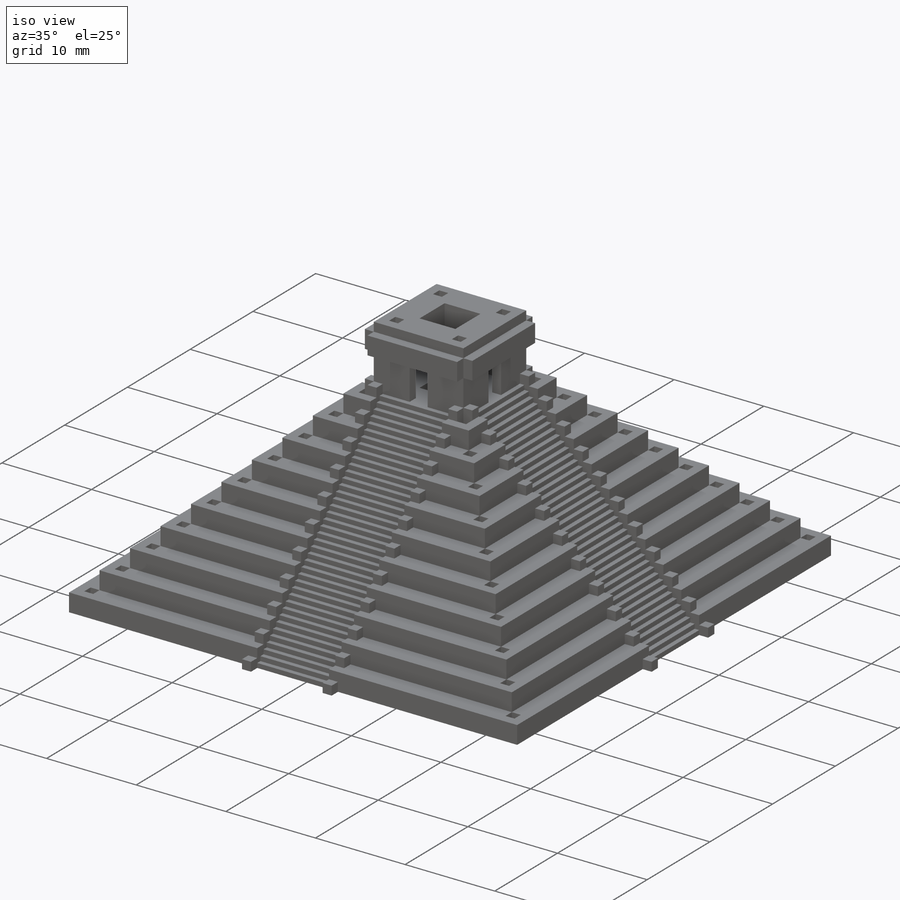
[diagram: iso view]
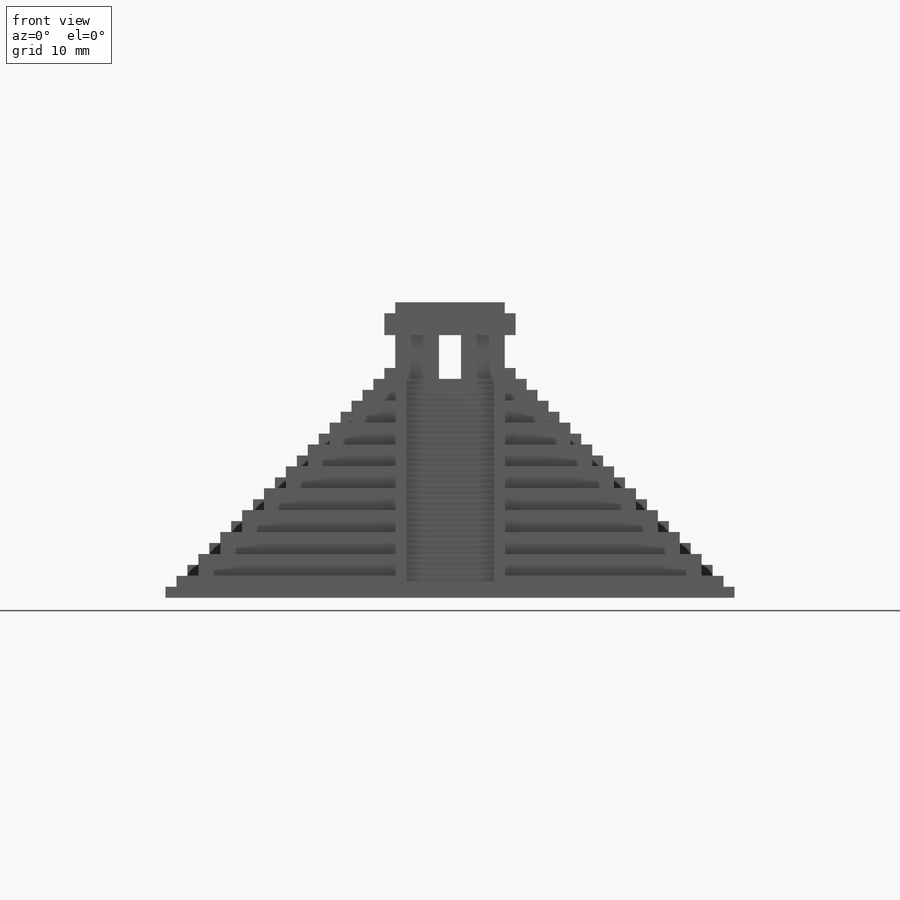
[diagram: front view]
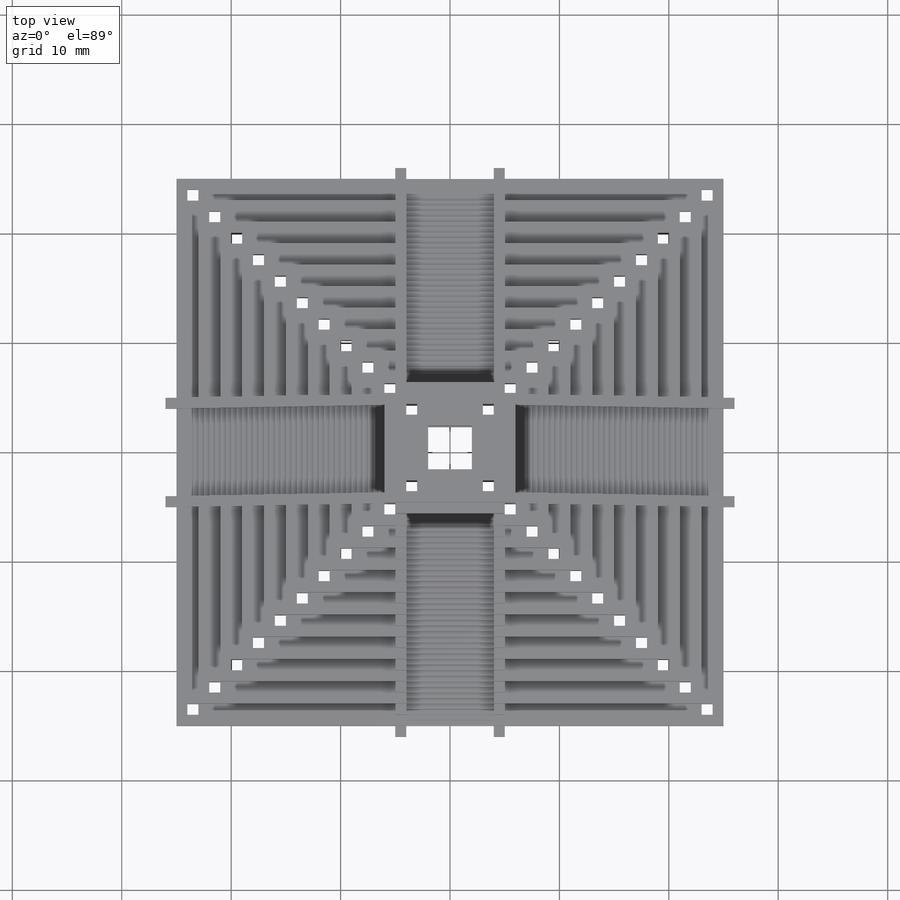
[diagram: top view]
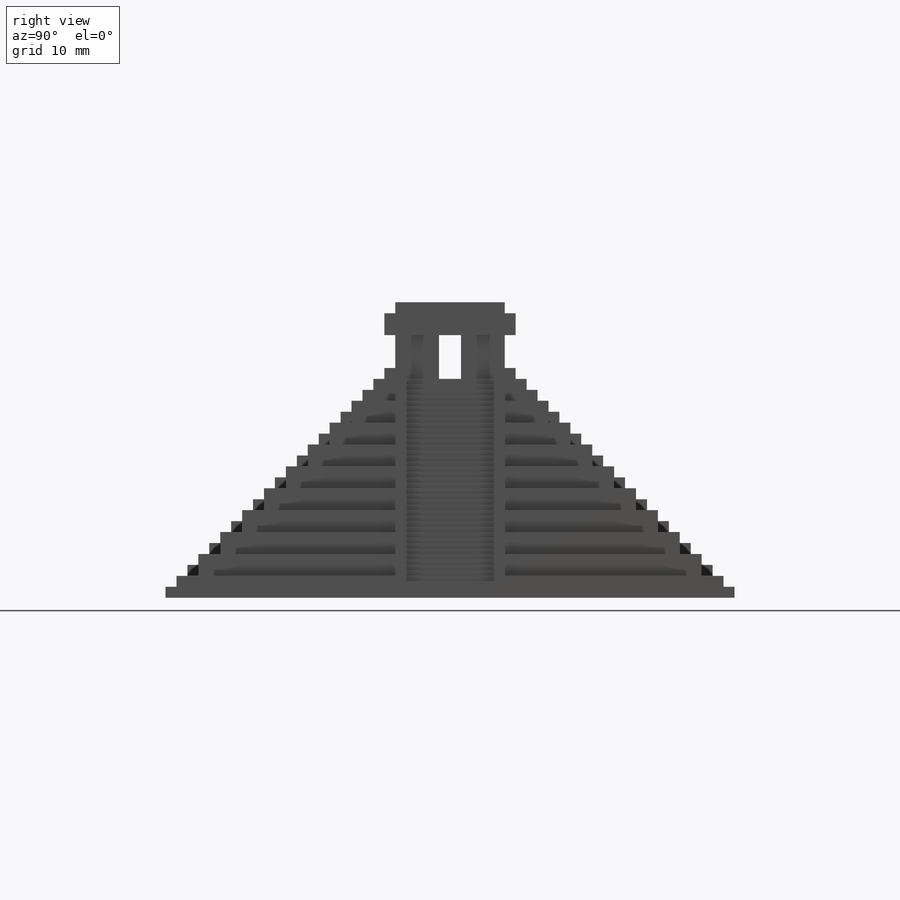
[diagram: right view]
SOLIDWORKS PART (.sldprt)
format: sldprt  version: not decoded by parser v0  size: 1,291,264 bytes
history: native  units: mm
features: sketch x16, extrude x14, plane x3, cut_extrude x2, material x1, mirror x1, pattern_circular x1 (+9 scaffold rows collapsed)
feature tree (47):
  scaffold x9  (default folders/planes/origin — collapsed)
  material  "Material <nicht festgelegt>"
  plane  "Ebene vorne"
  plane  "Ebene oben"
  plane  "Ebene rechts"
  sketch  "Skizze1"  dims[c1.D1=~145.030628mm c1.D2=~124.34673mm c2.D1=50.0mm c2.D2=~43.056608mm c2.D3=~43.056608mm c3.D2=~36.85111mm c3.D3=~36.85111mm c4.D2=~29.929593mm c4.D3=~29.929593mm c5.D2=~23.199015mm c5.D3=~23.199015mm c6.D2=~15.847887mm c6.D3=~15.847887mm c7.D2=~9.737858mm c7.D3=~9.737858mm c8.D2=5.0mm c8.D3=~20.080035mm c8.D4=~20.080035mm c9.D3=~15.731493mm c9.D4=~15.731493mm c10.D3=~11.127153mm c10.D4=~11.127153mm c11.D3=~6.874534mm c11.D4=~6.874534mm c12.D3=2.0mm c12.D4=2.0mm c12.D5=2.0mm c12.D6=2.0mm c12.D7=2.0mm c12.D8=2.0mm c12.D9=2.0mm c12.D10=2.0mm c12.D11=2.0mm c12.D2=5.0mm]
  extrude  "Aufsatz-Linear austragen1"  Depth=2mm
  sketch  "Skizze2"  dims[D1=2.0mm D2=2.0mm]
  extrude  "Aufsatz-Linear austragen2"  Depth=2mm
  sketch  "Skizze3"  dims[D1=2.0mm D2=2.0mm]
  extrude  "Aufsatz-Linear austragen3"  Depth=2mm
  sketch  "Skizze4"  dims[D1=2.0mm D2=2.0mm]
  extrude  "Aufsatz-Linear austragen4"  Depth=2mm
  sketch  "Skizze5"  dims[D1=2.0mm D2=2.0mm]
  extrude  "Aufsatz-Linear austragen5"  Depth=2mm
  sketch  "Skizze6"  dims[D1=2.0mm D2=2.0mm]
  extrude  "Aufsatz-Linear austragen6"  Depth=2mm
  sketch  "Skizze7"  dims[D1=2.0mm D2=2.0mm]
  extrude  "Aufsatz-Linear austragen7"  Depth=2mm
  sketch  "Skizze8"  dims[D1=2.0mm D2=2.0mm]
  extrude  "Aufsatz-Linear austragen8"  Depth=2mm
  sketch  "Skizze9"  dims[D1=2.0mm D2=2.0mm]
  extrude  "Aufsatz-Linear austragen9"  Depth=2mm
  sketch  "Skizze10"  dims[D1=2.0mm D2=2.0mm]
  extrude  "Aufsatz-Linear austragen10"  Depth=2mm
  sketch  "Skizze12"  dims[c1.D3=1.0mm c2.D3=90.0deg c3.D3=3.0mm c3.D4=~2.189948mm c4.D3=2.0mm c4.D1=2.0mm c4.D2=1.0mm]
  extrude  "Aufsatz-Linear austragen11"  Depth=4mm
  sketch  "Skizze13"  dims[c1.D1=~9.823192mm c1.D2=~10.21188mm c2.D1=1.0mm c2.D2=1.0mm c2.D3=1.0mm c2.D4=1.0mm c2.D5=8.0mm c2.D6=8.0mm c3.D1=8.0mm c3.D2=~3.462852mm c3.D3=~3.745534mm c4.D1=1.0mm c4.D2=1.0mm]
  extrude  "Aufsatz-Linear austragen12"  Depth=2mm
  extrude  "Aufsatz-Linear austragen13"  [1 undecoded]
  sketch  "Skizze13<3>"  dims[D1=3.0mm]
  sketch  "Skizze11"  dims[c1.D1=~0.903873mm c1.D2=~0.87106mm c2.D1=~0.869432mm c2.D2=~0.770991mm c3.D1=~0.966245mm c3.D2=~0.999058mm c4.D1=~0.931803mm c4.D2=~0.767735mm c5.D1=~0.831735mm c5.D2=~0.930175mm c6.D1=~1.125429mm c6.D2=~1.092615mm c7.D1=~0.697224mm c7.D2=~1.123801mm c8.D1=~1.056546mm c8.D2=~0.826851mm c9.D1=~0.825223mm c9.D2=~0.989291mm c10.D1=~0.984407mm c10.D2=~0.853153mm c11.D1=~0.769332mm c11.D2=~0.820621mm c12.D1=1.0mm c12.D2=1.0mm c12.D3=4.0mm c13.D3=90.0deg c14.D3=4.0mm c15.D3=90.0deg c16.D3=1.0mm]
  cut_extrude  "Schnitt-Linear austragen1"  [1 undecoded]
  sketch  "Skizze14"  dims[c1.D1=~0.81595mm c1.D2=1.0mm c2.D1=1.0mm c2.D2=1.0mm c3.D1=1.0mm c3.D2=1.0mm c4.D1=1.0mm c4.D2=1.0mm c5.D1=1.0mm c5.D2=1.0mm c6.D1=1.0mm c6.D2=1.0mm c7.D1=1.0mm c7.D2=1.0mm c8.D1=1.0mm c8.D2=1.0mm c9.D1=1.0mm c9.D2=1.0mm c10.D1=1.0mm c10.D2=1.0mm c11.D1=1.0mm c11.D2=~1.291723mm]
  extrude  "Aufsatz-Linear austragen14"  Depth=1mm
  mirror  "Spiegeln1"
  sketch  "Skizze15"  dims[c1.D1=~0.646456mm c1.D2=~2.292879mm c2.D1=40.0]
  cut_extrude  "Schnitt-Linear austragen2"  Depth=8mm
  pattern_circular  "Kreismuster1"  Count=4 Angle=360deg
decode coverage: 31 of 34 modeling features carry decoded parameters
note: ~ marks probable driven/reference dimensions
note: 2 parameter values undecoded
note: suppression state not decoded; provenance and decode notes live in map.json
